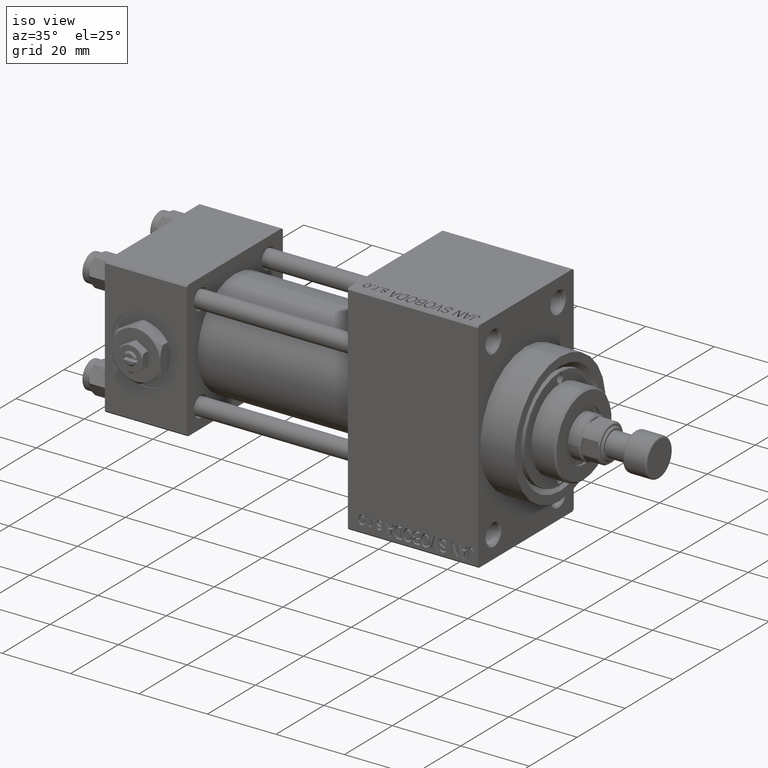
[diagram: clean part render]
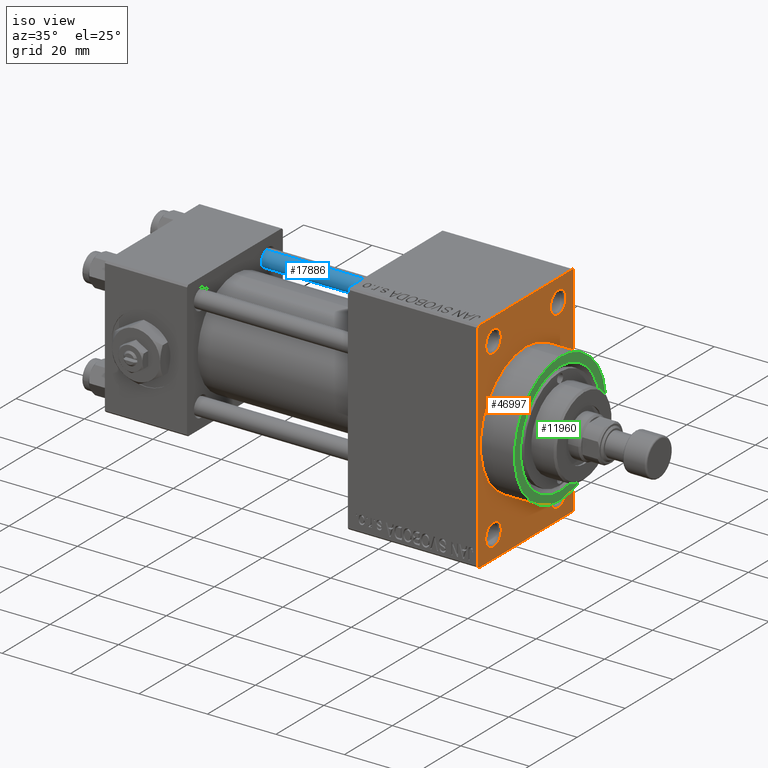
[diagram: same view with three faces highlighted in distinct colors, each labeled with its STEP entity id]
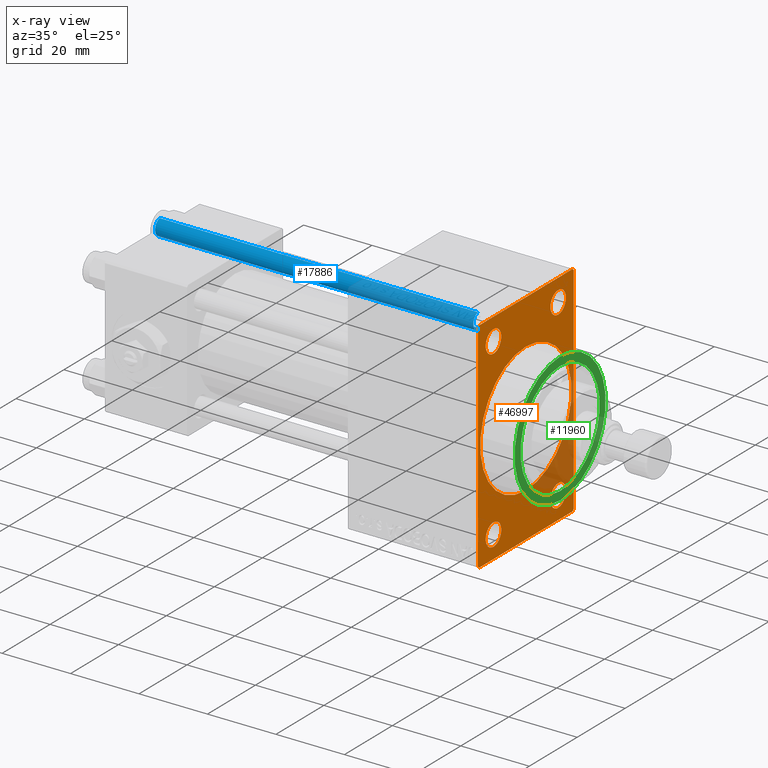
[diagram: x-ray of the same camera — body ghosted, the three highlighted faces saturated]
A machine part, iso view with three faces highlighted in distinct colors.
The next image is the same camera in x-ray (body ghosted, the three faces saturated) — at least one of them is partly hidden behind the body in this view.
Their STEP definitions:

[orange] entity #46997 — the highlighted planar face has unit normal (-1, 0, 0).
#106 = VECTOR ( 'NONE', #42181, 1000.000000000000114 ) ;
#495 = VECTOR ( 'NONE', #9372, 1000.000000000000000 ) ;
#976 = ORIENTED_EDGE ( 'NONE', *, *, #39723, .F. ) ;
#1828 = CARTESIAN_POINT ( 'NONE',  ( 109.0000000000000142, 0.000000000000000000, 0.000000000000000000 ) ) ;
#1945 = CARTESIAN_POINT ( 'NONE',  ( 109.0000000000000142, -13.50000000000000178, 25.50000000000000355 ) ) ;
#2197 = DIRECTION ( 'NONE',  ( -1.000000000000000000, -0.000000000000000000, -0.000000000000000000 ) ) ;
#2264 = LINE ( 'NONE', #10766, #20847 ) ;
#3152 = PLANE ( 'NONE',  #23231 ) ;
#3349 = DIRECTION ( 'NONE',  ( 0.000000000000000000, 0.000000000000000000, 1.000000000000000000 ) ) ;
#4244 = EDGE_CURVE ( 'NONE', #37434, #30790, #7837, .T. ) ;
#5402 = VERTEX_POINT ( 'NONE', #19528 ) ;
#5839 = EDGE_CURVE ( 'NONE', #10051, #12973, #11229, .T. ) ;
#6101 = EDGE_CURVE ( 'NONE', #33486, #8610, #32794, .T. ) ;
#6150 = CARTESIAN_POINT ( 'NONE',  ( 109.0000000000000142, 13.49999999999999822, 25.50000000000000355 ) ) ;
#6280 = CARTESIAN_POINT ( 'NONE',  ( 109.0000000000000142, 20.00000000000000000, -31.49999999999998579 ) ) ;
#6553 = DIRECTION ( 'NONE',  ( -1.000000000000000000, -0.000000000000000000, -0.000000000000000000 ) ) ;
#6769 = EDGE_CURVE ( 'NONE', #13498, #37434, #2264, .T. ) ;
#6906 = FACE_BOUND ( 'NONE', #32456, .T. ) ;
#7018 = DIRECTION ( 'NONE',  ( -0.000000000000000000, 0.7071067811865474617, 0.7071067811865474617 ) ) ;
#7320 = ORIENTED_EDGE ( 'NONE', *, *, #42637, .F. ) ;
#7685 = EDGE_LOOP ( 'NONE', ( #28982, #33975 ) ) ;
#7837 = LINE ( 'NONE', #37561, #33540 ) ;
#8495 = ORIENTED_EDGE ( 'NONE', *, *, #6101, .T. ) ;
#8610 = VERTEX_POINT ( 'NONE', #33549 ) ;
#9372 = DIRECTION ( 'NONE',  ( 0.000000000000000000, -1.000000000000000000, -1.734723475976807094E-16 ) ) ;
#9752 = DIRECTION ( 'NONE',  ( -1.000000000000000000, -0.000000000000000000, -0.000000000000000000 ) ) ;
#10051 = VERTEX_POINT ( 'NONE', #44568 ) ;
#10453 = ORIENTED_EDGE ( 'NONE', *, *, #19942, .F. ) ;
#10766 = CARTESIAN_POINT ( 'NONE',  ( 109.0000000000000142, -20.00000000000000000, 31.99999999999999289 ) ) ;
#11210 = CARTESIAN_POINT ( 'NONE',  ( 109.0000000000000142, 2.326828918379970970E-15, -19.00000000000000000 ) ) ;
#11229 = CIRCLE ( 'NONE', #33565, 3.250000000000002665 ) ;
#12661 = DIRECTION ( 'NONE',  ( 0.000000000000000000, 0.000000000000000000, 1.000000000000000000 ) ) ;
#12973 = VERTEX_POINT ( 'NONE', #25025 ) ;
#13289 = VERTEX_POINT ( 'NONE', #11210 ) ;
#13433 = VERTEX_POINT ( 'NONE', #24848 ) ;
#13482 = VECTOR ( 'NONE', #18816, 1000.000000000000000 ) ;
#13498 = VERTEX_POINT ( 'NONE', #25591 ) ;
#13914 = CARTESIAN_POINT ( 'NONE',  ( 109.0000000000000142, 0.000000000000000000, 0.000000000000000000 ) ) ;
#14109 = CIRCLE ( 'NONE', #17286, 3.250000000000002665 ) ;
#14174 = DIRECTION ( 'NONE',  ( 0.000000000000000000, 0.000000000000000000, 1.000000000000000000 ) ) ;
#14592 = VERTEX_POINT ( 'NONE', #27874 ) ;
#14716 = AXIS2_PLACEMENT_3D ( 'NONE', #6150, #43861, #40607 ) ;
#14853 = DIRECTION ( 'NONE',  ( 0.000000000000000000, 0.7071067811865426878, -0.7071067811865524577 ) ) ;
#14924 = CARTESIAN_POINT ( 'NONE',  ( 109.0000000000000142, 13.49999999999999822, -22.24999999999999645 ) ) ;
#15078 = EDGE_CURVE ( 'NONE', #46378, #5402, #48017, .T. ) ;
#15718 = CARTESIAN_POINT ( 'NONE',  ( 109.0000000000000142, -20.00000000000000000, 31.49999999999997868 ) ) ;
#17286 = AXIS2_PLACEMENT_3D ( 'NONE', #41322, #37562, #3349 ) ;
#17671 = DIRECTION ( 'NONE',  ( -0.000000000000000000, 0.000000000000000000, 1.000000000000000000 ) ) ;
#17703 = DIRECTION ( 'NONE',  ( 0.000000000000000000, 0.000000000000000000, 1.000000000000000000 ) ) ;
#18367 = EDGE_CURVE ( 'NONE', #13433, #25970, #31498, .T. ) ;
#18524 = CARTESIAN_POINT ( 'NONE',  ( 109.0000000000000142, 19.49999999999998579, -32.00000000000000000 ) ) ;
#18560 = CARTESIAN_POINT ( 'NONE',  ( 109.0000000000000142, 13.49999999999999822, -25.50000000000000000 ) ) ;
#18816 = DIRECTION ( 'NONE',  ( 0.000000000000000000, 0.000000000000000000, -1.000000000000000000 ) ) ;
#19277 = CARTESIAN_POINT ( 'NONE',  ( 109.0000000000000142, -20.00000000000000000, -31.49999999999997868 ) ) ;
#19525 = AXIS2_PLACEMENT_3D ( 'NONE', #18560, #33768, #37763 ) ;
#19528 = CARTESIAN_POINT ( 'NONE',  ( 109.0000000000000142, 20.00000000000000000, -31.49999999999998579 ) ) ;
#19866 = EDGE_CURVE ( 'NONE', #26600, #26702, #31568, .T. ) ;
#19942 = EDGE_CURVE ( 'NONE', #46378, #30790, #40611, .T. ) ;
#19986 = EDGE_LOOP ( 'NONE', ( #976, #45657 ) ) ;
#20847 = VECTOR ( 'NONE', #43987, 1000.000000000000000 ) ;
#21129 = EDGE_LOOP ( 'NONE', ( #30709, #24685 ) ) ;
#21327 = CARTESIAN_POINT ( 'NONE',  ( 109.0000000000000142, 19.49999999999998579, 32.00000000000000000 ) ) ;
#21411 = FACE_BOUND ( 'NONE', #7685, .T. ) ;
#21454 = ORIENTED_EDGE ( 'NONE', *, *, #47678, .T. ) ;
#21648 = VECTOR ( 'NONE', #37029, 1000.000000000000114 ) ;
#21992 = AXIS2_PLACEMENT_3D ( 'NONE', #31646, #46901, #12661 ) ;
#22152 = DIRECTION ( 'NONE',  ( -1.000000000000000000, 0.000000000000000000, -0.000000000000000000 ) ) ;
#22540 = CARTESIAN_POINT ( 'NONE',  ( 109.0000000000000142, -13.50000000000000533, -25.49999999999999645 ) ) ;
#22815 = LINE ( 'NONE', #38028, #13482 ) ;
#22988 = AXIS2_PLACEMENT_3D ( 'NONE', #34638, #34389, #27413 ) ;
#23164 = CARTESIAN_POINT ( 'NONE',  ( 109.0000000000000142, -19.49999999999998579, -32.00000000000000000 ) ) ;
#23231 = AXIS2_PLACEMENT_3D ( 'NONE', #13914, #22152, #17671 ) ;
#24685 = ORIENTED_EDGE ( 'NONE', *, *, #25391, .T. ) ;
#24745 = EDGE_CURVE ( 'NONE', #8610, #39002, #43827, .T. ) ;
#24848 = CARTESIAN_POINT ( 'NONE',  ( 109.0000000000000142, 13.49999999999999822, -28.75000000000000000 ) ) ;
#25025 = CARTESIAN_POINT ( 'NONE',  ( 109.0000000000000142, -13.50000000000000178, 28.75000000000000355 ) ) ;
#25156 = FACE_BOUND ( 'NONE', #21129, .T. ) ;
#25391 = EDGE_CURVE ( 'NONE', #25970, #13433, #31593, .T. ) ;
#25541 = DIRECTION ( 'NONE',  ( 0.000000000000000000, 0.000000000000000000, 1.000000000000000000 ) ) ;
#25591 = CARTESIAN_POINT ( 'NONE',  ( 109.0000000000000142, -20.00000000000000000, 31.49999999999997868 ) ) ;
#25603 = ORIENTED_EDGE ( 'NONE', *, *, #24745, .T. ) ;
#25970 = VERTEX_POINT ( 'NONE', #14924 ) ;
#26600 = VERTEX_POINT ( 'NONE', #34255 ) ;
#26702 = VERTEX_POINT ( 'NONE', #28984 ) ;
#26923 = ORIENTED_EDGE ( 'NONE', *, *, #33501, .T. ) ;
#27413 = DIRECTION ( 'NONE',  ( 0.000000000000000000, 0.000000000000000000, -1.000000000000000000 ) ) ;
#27459 = ORIENTED_EDGE ( 'NONE', *, *, #15078, .T. ) ;
#27488 = ORIENTED_EDGE ( 'NONE', *, *, #4244, .T. ) ;
#27656 = AXIS2_PLACEMENT_3D ( 'NONE', #22540, #6553, #25541 ) ;
#27685 = LINE ( 'NONE', #15718, #106 ) ;
#27874 = CARTESIAN_POINT ( 'NONE',  ( 109.0000000000000142, -13.50000000000000533, -28.74999999999999645 ) ) ;
#28079 = ORIENTED_EDGE ( 'NONE', *, *, #6769, .T. ) ;
#28188 = VECTOR ( 'NONE', #7018, 1000.000000000000114 ) ;
#28285 = AXIS2_PLACEMENT_3D ( 'NONE', #47724, #9752, #28480 ) ;
#28323 = EDGE_CURVE ( 'NONE', #26702, #26600, #41020, .T. ) ;
#28428 = CIRCLE ( 'NONE', #27656, 3.250000000000002665 ) ;
#28480 = DIRECTION ( 'NONE',  ( 0.000000000000000000, 0.000000000000000000, 1.000000000000000000 ) ) ;
#28599 = CIRCLE ( 'NONE', #39755, 19.00000000000000000 ) ;
#28616 = EDGE_LOOP ( 'NONE', ( #28079, #27488, #10453, #27459, #7320, #8495, #25603, #21454 ) ) ;
#28982 = ORIENTED_EDGE ( 'NONE', *, *, #19866, .T. ) ;
#28984 = CARTESIAN_POINT ( 'NONE',  ( 109.0000000000000142, 13.49999999999999822, 28.74999999999996803 ) ) ;
#29237 = EDGE_CURVE ( 'NONE', #12973, #10051, #33059, .T. ) ;
#29390 = FACE_BOUND ( 'NONE', #19986, .T. ) ;
#29653 = DIRECTION ( 'NONE',  ( -1.000000000000000000, -0.000000000000000000, -0.000000000000000000 ) ) ;
#29758 = CARTESIAN_POINT ( 'NONE',  ( 109.0000000000000142, 0.000000000000000000, 19.00000000000000000 ) ) ;
#30689 = ORIENTED_EDGE ( 'NONE', *, *, #5839, .T. ) ;
#30709 = ORIENTED_EDGE ( 'NONE', *, *, #18367, .T. ) ;
#30790 = VERTEX_POINT ( 'NONE', #23164 ) ;
#31498 = CIRCLE ( 'NONE', #19525, 3.250000000000002665 ) ;
#31568 = CIRCLE ( 'NONE', #21992, 3.249999999999961364 ) ;
#31593 = CIRCLE ( 'NONE', #45194, 3.250000000000002665 ) ;
#31646 = CARTESIAN_POINT ( 'NONE',  ( 109.0000000000000142, 13.49999999999999822, 25.50000000000000355 ) ) ;
#31813 = DIRECTION ( 'NONE',  ( 1.000000000000000000, 0.000000000000000000, 0.000000000000000000 ) ) ;
#32456 = EDGE_LOOP ( 'NONE', ( #30689, #42532 ) ) ;
#32794 = LINE ( 'NONE', #21327, #21648 ) ;
#33059 = CIRCLE ( 'NONE', #28285, 3.250000000000002665 ) ;
#33213 = CARTESIAN_POINT ( 'NONE',  ( 109.0000000000000142, -13.50000000000000533, -22.24999999999999289 ) ) ;
#33486 = VERTEX_POINT ( 'NONE', #48595 ) ;
#33501 = EDGE_CURVE ( 'NONE', #45029, #14592, #14109, .T. ) ;
#33540 = VECTOR ( 'NONE', #14853, 1000.000000000000000 ) ;
#33549 = CARTESIAN_POINT ( 'NONE',  ( 109.0000000000000142, 19.49999999999998579, 32.00000000000000000 ) ) ;
#33565 = AXIS2_PLACEMENT_3D ( 'NONE', #1945, #2197, #17703 ) ;
#33768 = DIRECTION ( 'NONE',  ( -1.000000000000000000, -0.000000000000000000, -0.000000000000000000 ) ) ;
#33975 = ORIENTED_EDGE ( 'NONE', *, *, #28323, .T. ) ;
#34255 = CARTESIAN_POINT ( 'NONE',  ( 109.0000000000000142, 13.49999999999999822, 22.25000000000004263 ) ) ;
#34389 = DIRECTION ( 'NONE',  ( 1.000000000000000000, 0.000000000000000000, 0.000000000000000000 ) ) ;
#34638 = CARTESIAN_POINT ( 'NONE',  ( 109.0000000000000142, 0.000000000000000000, 0.000000000000000000 ) ) ;
#36041 = DIRECTION ( 'NONE',  ( 0.000000000000000000, 0.000000000000000000, -1.000000000000000000 ) ) ;
#36069 = CARTESIAN_POINT ( 'NONE',  ( 109.0000000000000142, 20.00000000000000000, 32.00000000000000000 ) ) ;
#36243 = ORIENTED_EDGE ( 'NONE', *, *, #37271, .T. ) ;
#37029 = DIRECTION ( 'NONE',  ( 0.000000000000000000, -0.7071067811865474617, 0.7071067811865474617 ) ) ;
#37098 = CARTESIAN_POINT ( 'NONE',  ( 109.0000000000000142, 20.00000000000000000, -32.00000000000000000 ) ) ;
#37271 = EDGE_CURVE ( 'NONE', #14592, #45029, #28428, .T. ) ;
#37360 = FACE_BOUND ( 'NONE', #44451, .T. ) ;
#37434 = VERTEX_POINT ( 'NONE', #19277 ) ;
#37561 = CARTESIAN_POINT ( 'NONE',  ( 109.0000000000000142, -19.49999999999998579, -32.00000000000000000 ) ) ;
#37562 = DIRECTION ( 'NONE',  ( -1.000000000000000000, -0.000000000000000000, -0.000000000000000000 ) ) ;
#37611 = FACE_OUTER_BOUND ( 'NONE', #28616, .T. ) ;
#37763 = DIRECTION ( 'NONE',  ( 0.000000000000000000, 0.000000000000000000, 1.000000000000000000 ) ) ;
#37944 = VECTOR ( 'NONE', #40857, 1000.000000000000000 ) ;
#38028 = CARTESIAN_POINT ( 'NONE',  ( 109.0000000000000142, 20.00000000000000000, 32.00000000000000000 ) ) ;
#39002 = VERTEX_POINT ( 'NONE', #42328 ) ;
#39723 = EDGE_CURVE ( 'NONE', #46450, #13289, #48493, .T. ) ;
#39755 = AXIS2_PLACEMENT_3D ( 'NONE', #1828, #31813, #36041 ) ;
#40607 = DIRECTION ( 'NONE',  ( 0.000000000000000000, 0.000000000000000000, 1.000000000000000000 ) ) ;
#40611 = LINE ( 'NONE', #37098, #37944 ) ;
#40857 = DIRECTION ( 'NONE',  ( 0.000000000000000000, -1.000000000000000000, 0.000000000000000000 ) ) ;
#41020 = CIRCLE ( 'NONE', #14716, 3.249999999999961364 ) ;
#41322 = CARTESIAN_POINT ( 'NONE',  ( 109.0000000000000142, -13.50000000000000533, -25.49999999999999645 ) ) ;
#41659 = EDGE_CURVE ( 'NONE', #13289, #46450, #28599, .T. ) ;
#42181 = DIRECTION ( 'NONE',  ( -0.000000000000000000, -0.7071067811865474617, -0.7071067811865474617 ) ) ;
#42328 = CARTESIAN_POINT ( 'NONE',  ( 109.0000000000000142, -19.49999999999998579, 31.99999999999999289 ) ) ;
#42532 = ORIENTED_EDGE ( 'NONE', *, *, #29237, .T. ) ;
#42637 = EDGE_CURVE ( 'NONE', #33486, #5402, #22815, .T. ) ;
#43827 = LINE ( 'NONE', #36069, #495 ) ;
#43861 = DIRECTION ( 'NONE',  ( -1.000000000000000000, -0.000000000000000000, -0.000000000000000000 ) ) ;
#43987 = DIRECTION ( 'NONE',  ( 0.000000000000000000, 0.000000000000000000, -1.000000000000000000 ) ) ;
#44451 = EDGE_LOOP ( 'NONE', ( #36243, #26923 ) ) ;
#44568 = CARTESIAN_POINT ( 'NONE',  ( 109.0000000000000142, -13.50000000000000178, 22.25000000000000000 ) ) ;
#45029 = VERTEX_POINT ( 'NONE', #33213 ) ;
#45194 = AXIS2_PLACEMENT_3D ( 'NONE', #48410, #29653, #14174 ) ;
#45657 = ORIENTED_EDGE ( 'NONE', *, *, #41659, .F. ) ;
#46378 = VERTEX_POINT ( 'NONE', #18524 ) ;
#46450 = VERTEX_POINT ( 'NONE', #29758 ) ;
#46901 = DIRECTION ( 'NONE',  ( -1.000000000000000000, -0.000000000000000000, -0.000000000000000000 ) ) ;
#46997 = ADVANCED_FACE ( 'NONE', ( #6906, #37360, #25156, #21411, #29390, #37611 ), #3152, .F. ) ;
#47678 = EDGE_CURVE ( 'NONE', #39002, #13498, #27685, .T. ) ;
#47724 = CARTESIAN_POINT ( 'NONE',  ( 109.0000000000000142, -13.50000000000000178, 25.50000000000000355 ) ) ;
#48017 = LINE ( 'NONE', #6280, #28188 ) ;
#48410 = CARTESIAN_POINT ( 'NONE',  ( 109.0000000000000142, 13.49999999999999822, -25.50000000000000000 ) ) ;
#48493 = CIRCLE ( 'NONE', #22988, 19.00000000000000000 ) ;
#48595 = CARTESIAN_POINT ( 'NONE',  ( 109.0000000000000142, 20.00000000000000000, 31.49999999999998579 ) ) ;

[blue] entity #17886 — the highlighted cylindrical surface (edge-blend (fillet) strip) has radius 2.5 mm, axis along (-1, -0, 0).
#62 = ORIENTED_EDGE ( 'NONE', *, *, #862, .F. ) ;
#862 = EDGE_CURVE ( 'NONE', #45749, #46784, #21275, .T. ) ;
#5899 = AXIS2_PLACEMENT_3D ( 'NONE', #29699, #26205, #46422 ) ;
#7421 = CARTESIAN_POINT ( 'NONE',  ( 0.000000000000000000, 0.000000000000000000, 94.00000000000000000 ) ) ;
#7667 = DIRECTION ( 'NONE',  ( -0.000000000000000000, -0.000000000000000000, -1.000000000000000000 ) ) ;
#8573 = DIRECTION ( 'NONE',  ( -0.000000000000000000, -0.000000000000000000, 1.000000000000000000 ) ) ;
#9149 = AXIS2_PLACEMENT_3D ( 'NONE', #7421, #7667, #37881 ) ;
#9444 = VECTOR ( 'NONE', #18020, 1000.000000000000000 ) ;
#10683 = CYLINDRICAL_SURFACE ( 'NONE', #9149, 2.500000000000000000 ) ;
#13110 = LINE ( 'NONE', #28347, #37017 ) ;
#15458 = EDGE_CURVE ( 'NONE', #45749, #20494, #22635, .T. ) ;
#16722 = EDGE_CURVE ( 'NONE', #20494, #45403, #13110, .T. ) ;
#17886 = ADVANCED_FACE ( 'NONE', ( #41647 ), #10683, .T. ) ;
#18020 = DIRECTION ( 'NONE',  ( -0.000000000000000000, -0.000000000000000000, -1.000000000000000000 ) ) ;
#20363 = DIRECTION ( 'NONE',  ( -0.000000000000000000, -0.000000000000000000, -1.000000000000000000 ) ) ;
#20412 = EDGE_CURVE ( 'NONE', #45403, #46784, #22772, .T. ) ;
#20494 = VERTEX_POINT ( 'NONE', #28531 ) ;
#21275 = LINE ( 'NONE', #48254, #9444 ) ;
#22613 = CARTESIAN_POINT ( 'NONE',  ( 2.500000000000000000, 3.061616997868383141E-16, 93.50000000000001421 ) ) ;
#22635 = CIRCLE ( 'NONE', #5899, 2.500000000000000000 ) ;
#22772 = CIRCLE ( 'NONE', #41918, 2.500000000000000000 ) ;
#23808 = DIRECTION ( 'NONE',  ( 1.000000000000000000, 0.000000000000000000, 0.000000000000000000 ) ) ;
#24658 = EDGE_LOOP ( 'NONE', ( #62, #24939, #25768, #47954 ) ) ;
#24939 = ORIENTED_EDGE ( 'NONE', *, *, #15458, .T. ) ;
#25768 = ORIENTED_EDGE ( 'NONE', *, *, #16722, .T. ) ;
#26205 = DIRECTION ( 'NONE',  ( 0.000000000000000000, 0.000000000000000000, -1.000000000000000000 ) ) ;
#26830 = CARTESIAN_POINT ( 'NONE',  ( 0.000000000000000000, 0.000000000000000000, 0.5000000000000004441 ) ) ;
#28347 = CARTESIAN_POINT ( 'NONE',  ( -2.500000000000000000, 0.000000000000000000, 94.00000000000000000 ) ) ;
#28531 = CARTESIAN_POINT ( 'NONE',  ( -2.500000000000000000, 0.000000000000000000, 93.50000000000001421 ) ) ;
#29699 = CARTESIAN_POINT ( 'NONE',  ( 0.000000000000000000, 0.000000000000000000, 93.50000000000001421 ) ) ;
#34131 = CARTESIAN_POINT ( 'NONE',  ( -2.500000000000000000, 0.000000000000000000, 0.5000000000000004441 ) ) ;
#37017 = VECTOR ( 'NONE', #20363, 1000.000000000000000 ) ;
#37881 = DIRECTION ( 'NONE',  ( -1.000000000000000000, 0.000000000000000000, 0.000000000000000000 ) ) ;
#38414 = CARTESIAN_POINT ( 'NONE',  ( 2.500000000000000000, 3.061616997868383141E-16, 0.5000000000000004441 ) ) ;
#41647 = FACE_OUTER_BOUND ( 'NONE', #24658, .T. ) ;
#41918 = AXIS2_PLACEMENT_3D ( 'NONE', #26830, #8573, #23808 ) ;
#45403 = VERTEX_POINT ( 'NONE', #34131 ) ;
#45749 = VERTEX_POINT ( 'NONE', #22613 ) ;
#46422 = DIRECTION ( 'NONE',  ( 1.000000000000000000, 0.000000000000000000, 0.000000000000000000 ) ) ;
#46784 = VERTEX_POINT ( 'NONE', #38414 ) ;
#47954 = ORIENTED_EDGE ( 'NONE', *, *, #20412, .T. ) ;
#48254 = CARTESIAN_POINT ( 'NONE',  ( 2.500000000000000000, 3.061616997868383141E-16, 94.00000000000000000 ) ) ;

[green] entity #11960 — the highlighted planar face has unit normal (1, 0, 0).
#68 = DIRECTION ( 'NONE',  ( 1.000000000000000000, 0.000000000000000000, 0.000000000000000000 ) ) ;
#935 = AXIS2_PLACEMENT_3D ( 'NONE', #29815, #68, #30305 ) ;
#2421 = EDGE_CURVE ( 'NONE', #4261, #18554, #23113, .T. ) ;
#2896 = CIRCLE ( 'NONE', #34720, 19.00000000000000000 ) ;
#4261 = VERTEX_POINT ( 'NONE', #45321 ) ;
#8065 = PLANE ( 'NONE',  #935 ) ;
#8775 = DIRECTION ( 'NONE',  ( 1.000000000000000000, 0.000000000000000000, 0.000000000000000000 ) ) ;
#9193 = DIRECTION ( 'NONE',  ( -1.000000000000000000, -0.000000000000000000, -0.000000000000000000 ) ) ;
#9841 = VERTEX_POINT ( 'NONE', #28953 ) ;
#10651 = AXIS2_PLACEMENT_3D ( 'NONE', #36465, #41212, #32475 ) ;
#11960 = ADVANCED_FACE ( 'NONE', ( #19068, #22820 ), #8065, .T. ) ;
#11976 = ORIENTED_EDGE ( 'NONE', *, *, #22407, .T. ) ;
#12024 = CARTESIAN_POINT ( 'NONE',  ( 119.0000000000000142, 0.000000000000000000, 0.000000000000000000 ) ) ;
#15988 = DIRECTION ( 'NONE',  ( 1.000000000000000000, 0.000000000000000000, 0.000000000000000000 ) ) ;
#16731 = AXIS2_PLACEMENT_3D ( 'NONE', #46701, #15988, #42698 ) ;
#17477 = ORIENTED_EDGE ( 'NONE', *, *, #2421, .T. ) ;
#17780 = EDGE_LOOP ( 'NONE', ( #11976, #17477 ) ) ;
#18554 = VERTEX_POINT ( 'NONE', #32479 ) ;
#19068 = FACE_BOUND ( 'NONE', #37461, .T. ) ;
#22407 = EDGE_CURVE ( 'NONE', #18554, #4261, #2896, .T. ) ;
#22820 = FACE_OUTER_BOUND ( 'NONE', #17780, .T. ) ;
#23113 = CIRCLE ( 'NONE', #16731, 19.00000000000000000 ) ;
#24959 = ORIENTED_EDGE ( 'NONE', *, *, #26724, .T. ) ;
#26458 = ORIENTED_EDGE ( 'NONE', *, *, #35338, .T. ) ;
#26724 = EDGE_CURVE ( 'NONE', #38130, #9841, #35331, .T. ) ;
#28953 = CARTESIAN_POINT ( 'NONE',  ( 119.0000000000000142, 2.020667218593132706E-15, 16.50000000000000000 ) ) ;
#29815 = CARTESIAN_POINT ( 'NONE',  ( 119.0000000000000142, 0.000000000000000000, 0.000000000000000000 ) ) ;
#30120 = CIRCLE ( 'NONE', #46778, 16.50000000000000000 ) ;
#30305 = DIRECTION ( 'NONE',  ( 0.000000000000000000, 0.000000000000000000, -1.000000000000000000 ) ) ;
#31130 = CARTESIAN_POINT ( 'NONE',  ( 119.0000000000000142, 0.000000000000000000, -16.50000000000000000 ) ) ;
#32398 = DIRECTION ( 'NONE',  ( 0.000000000000000000, 0.000000000000000000, -1.000000000000000000 ) ) ;
#32475 = DIRECTION ( 'NONE',  ( 0.000000000000000000, 0.000000000000000000, -1.000000000000000000 ) ) ;
#32479 = CARTESIAN_POINT ( 'NONE',  ( 119.0000000000000142, 0.000000000000000000, 19.00000000000000000 ) ) ;
#34720 = AXIS2_PLACEMENT_3D ( 'NONE', #12024, #8775, #46511 ) ;
#35331 = CIRCLE ( 'NONE', #10651, 16.50000000000000000 ) ;
#35338 = EDGE_CURVE ( 'NONE', #9841, #38130, #30120, .T. ) ;
#36465 = CARTESIAN_POINT ( 'NONE',  ( 119.0000000000000142, 0.000000000000000000, 0.000000000000000000 ) ) ;
#37461 = EDGE_LOOP ( 'NONE', ( #24959, #26458 ) ) ;
#38130 = VERTEX_POINT ( 'NONE', #31130 ) ;
#41212 = DIRECTION ( 'NONE',  ( -1.000000000000000000, -0.000000000000000000, -0.000000000000000000 ) ) ;
#42698 = DIRECTION ( 'NONE',  ( 0.000000000000000000, 0.000000000000000000, -1.000000000000000000 ) ) ;
#43659 = CARTESIAN_POINT ( 'NONE',  ( 119.0000000000000142, 0.000000000000000000, 0.000000000000000000 ) ) ;
#45321 = CARTESIAN_POINT ( 'NONE',  ( 119.0000000000000142, 2.326828918379970970E-15, -19.00000000000000000 ) ) ;
#46511 = DIRECTION ( 'NONE',  ( 0.000000000000000000, 0.000000000000000000, -1.000000000000000000 ) ) ;
#46701 = CARTESIAN_POINT ( 'NONE',  ( 119.0000000000000142, 0.000000000000000000, 0.000000000000000000 ) ) ;
#46778 = AXIS2_PLACEMENT_3D ( 'NONE', #43659, #9193, #32398 ) ;